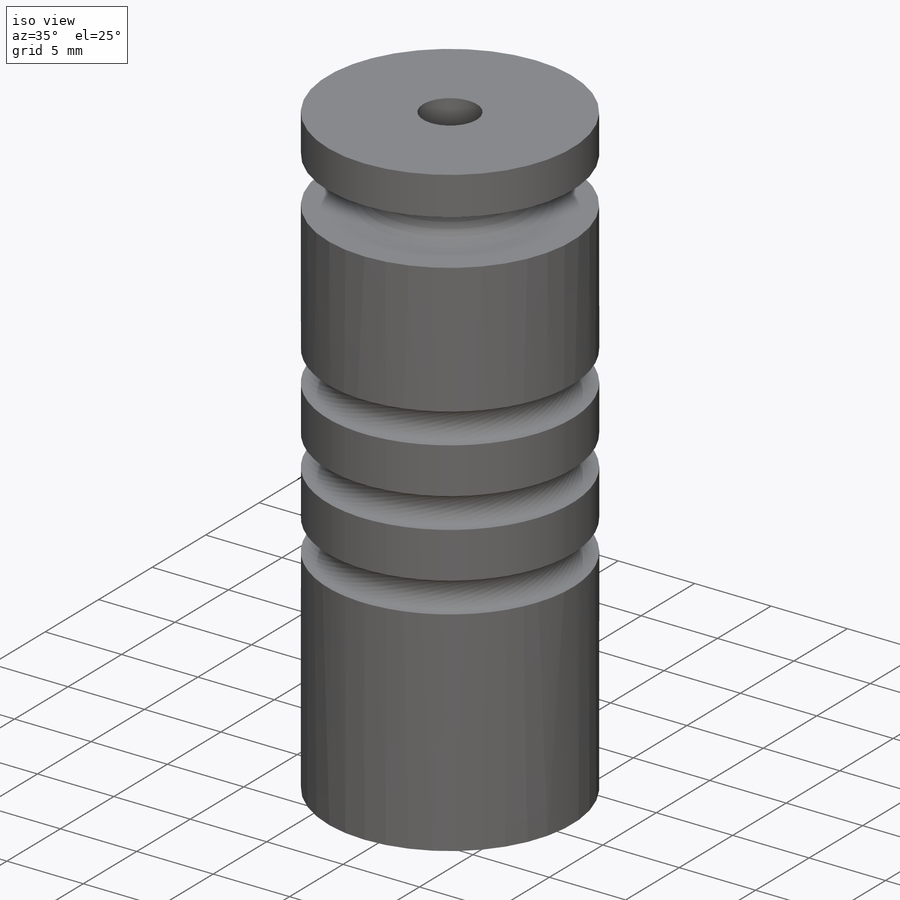
[diagram: iso view]
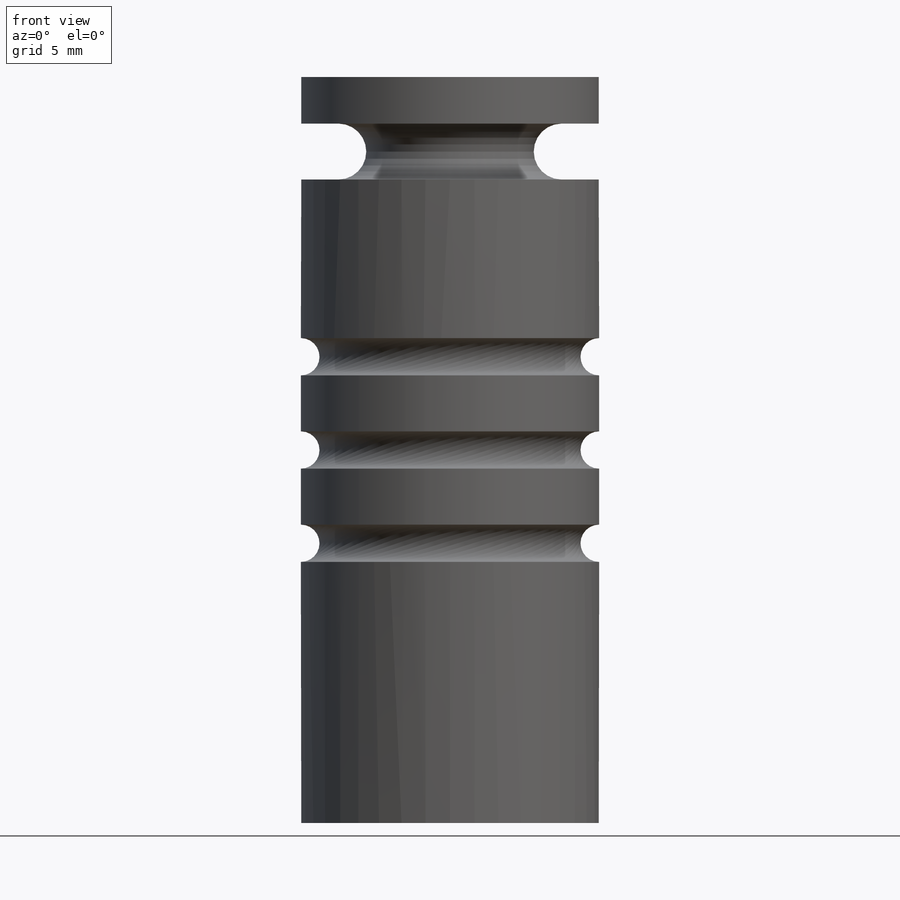
[diagram: front view]
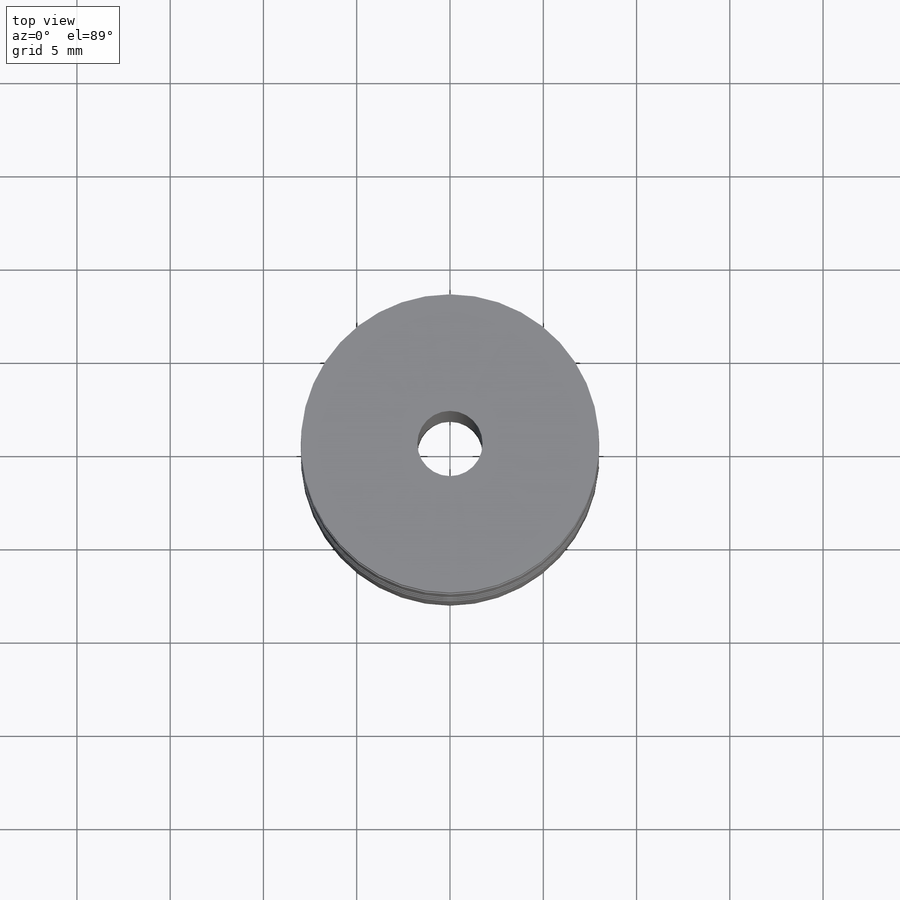
[diagram: top view]
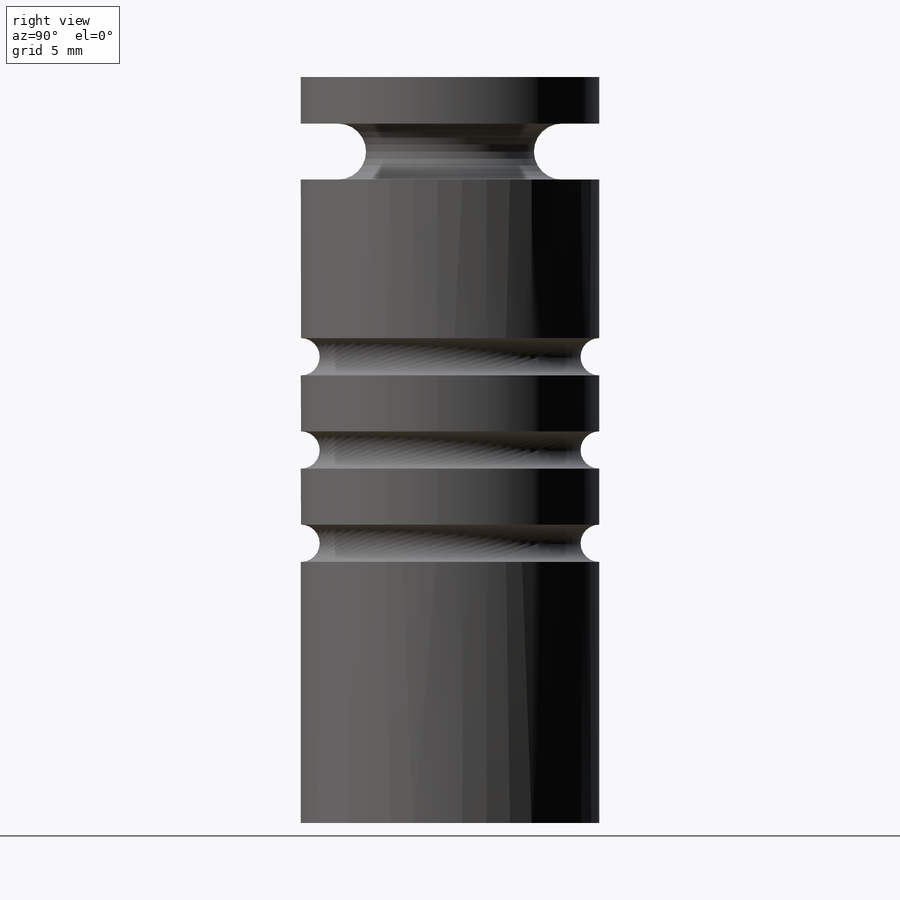
[diagram: right view]
SOLIDWORKS PART (.sldprt)
format: sldprt  version: not decoded by parser v0  size: 239,616 bytes
history: native  units: mm
features: sketch x9, sweep x3, cut_extrude x2, plane x2, material x1, extrude x1 (+16 scaffold rows collapsed)
feature tree (34):
  scaffold x16  (default folders/planes/origin — collapsed)
  material  "Material <not specified>"
  sketch  "Sketch1"  dims[D1=~20.070796mm]
  extrude  "Extrude1"  Depth=40mm
  sketch  "Sketch2"  dims[D1=~2.016389mm]
  cut_extrude  "Extrude2"  Depth=40mm
  sketch  "Sketch3"  dims[D1=8.0mm]
  cut_extrude  "Extrude3"  Depth=6.35mm
  sketch  "Sketch4"  dims[D1=~1.264645mm]
  plane  "Plane1"  Offset=15mm
  sketch  "Sketch6"
  sweep  "Cut-Sweep1"
  plane  "Plane2"  Offset=4mm
  sketch  "Sketch8"
  sketch  "Sketch9"
  sweep  "Cut-Sweep3"
  sketch  "Sketch10"  dims[D1=~1.38594mm]
  sketch  "Sketch11"  dims[D1=~2.838392mm]
  sweep  "Cut-Sweep4"
decode coverage: 9 of 15 modeling features carry decoded parameters
note: ~ marks probable driven/reference dimensions
note: suppression state not decoded; provenance and decode notes live in map.json
